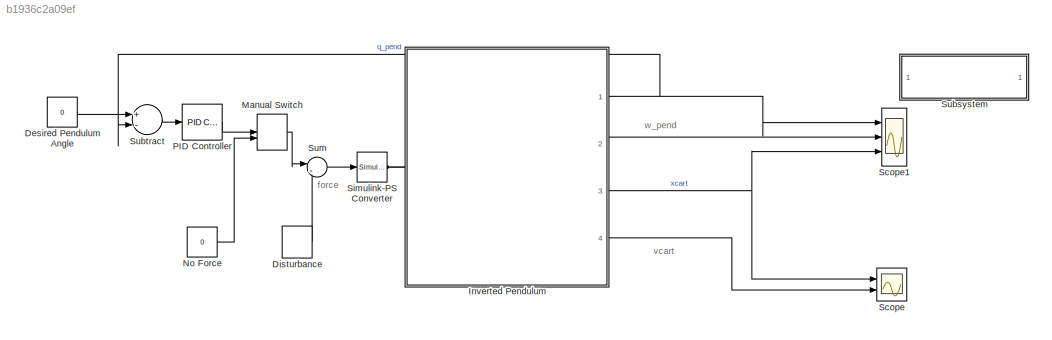
MODEL slx_b1936c2a09ef
KIND model
CONFIG AbsTol = auto
CONFIG EnableMultiTasking = on
CONFIG FixedStep = auto
CONFIG MaxStep = auto
CONFIG MinStep = auto
CONFIG RelTol = 1e-3
CONFIG SampleTimeConstraint = Unconstrained
CONFIG Solver = VariableStepAuto
CONFIG SolverName = VariableStepAuto
CONFIG StartTime = 0.0
CONFIG StopTime = 10.0
BLOCK [Constant] Desired Pendulum Angle 
  Value = 0
BLOCK [DiscretePulseGenerator] Disturbance 
  Amplitude = 1000
  Period = 10
  PhaseDelay = 1
  Ports = [0, 1]
  PulseType = Time based
  PulseWidth = 0.01
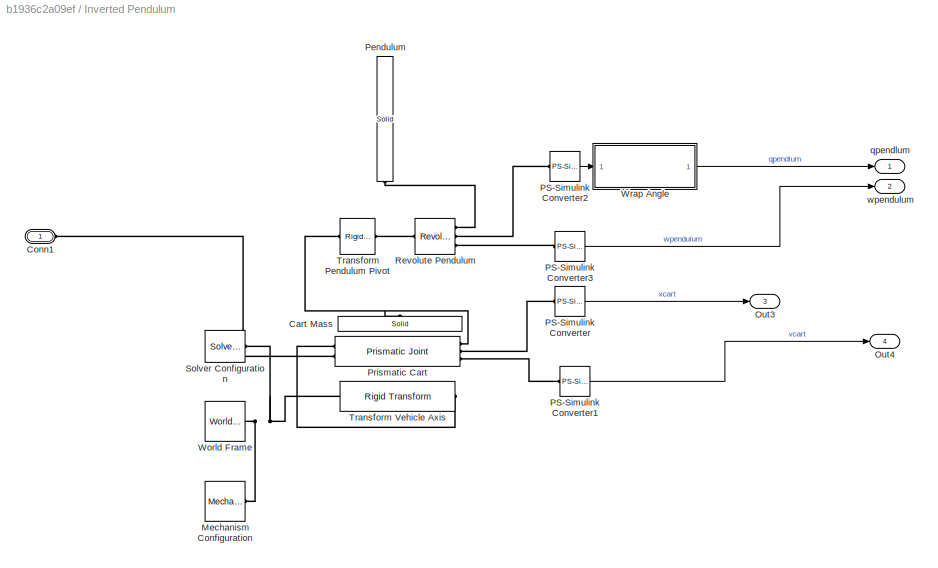
BLOCK [SubSystem] Inverted Pendulum
  Ports = [0, 4, 0, 0, 0, 1]
  RequestExecContextInheritance = off
BLOCK [Reference] Inverted Pendulum/Cart Mass  REF=sm_lib/Body Elements/Solid
  Ports = [0, 0, 0, 0, 0, 0, 1]
  SourceBlock = sm_lib/Body Elements/Solid
  SourceProductBaseCode = MS
  SourceProductName = Simscape Multibody
  SourceType = Solid
BLOCK [PMIOPort] Inverted Pendulum/Conn1
  Side = Left
BLOCK [Reference] Inverted Pendulum/Mechanism Configuration  REF=sm_lib/Utilities/Mechanism
Configuration
  Ports = [0, 0, 0, 0, 0, 0, 1]
  SourceBlock = sm_lib/Utilities/Mechanism\nConfiguration
  SourceProductBaseCode = MS
  SourceProductName = Simscape Multibody
  SourceType = Mechanism\nConfiguration
BLOCK [Outport] Inverted Pendulum/Out3
  IconDisplay = Port number
  Port = 3
BLOCK [Outport] Inverted Pendulum/Out4
  IconDisplay = Port number
  Port = 4
BLOCK [Reference] Inverted Pendulum/PS-Simulink Converter  REF=nesl_utility/PS-Simulink
Converter
  Ports = [0, 1, 0, 0, 0, 1]
  SourceBlock = nesl_utility/PS-Simulink\nConverter
  SourceProductBaseCode = SS
  SourceProductName = Simscape
  SourceType = PS-Simulink\nConverter
BLOCK [Reference] Inverted Pendulum/PS-Simulink Converter1  REF=nesl_utility/PS-Simulink
Converter
  Ports = [0, 1, 0, 0, 0, 1]
  SourceBlock = nesl_utility/PS-Simulink\nConverter
  SourceProductBaseCode = SS
  SourceProductName = Simscape
  SourceType = PS-Simulink\nConverter
BLOCK [Reference] Inverted Pendulum/PS-Simulink Converter2  REF=nesl_utility/PS-Simulink
Converter
  Ports = [0, 1, 0, 0, 0, 1]
  SourceBlock = nesl_utility/PS-Simulink\nConverter
  SourceProductBaseCode = SS
  SourceProductName = Simscape
  SourceType = PS-Simulink\nConverter
BLOCK [Reference] Inverted Pendulum/PS-Simulink Converter3  REF=nesl_utility/PS-Simulink
Converter
  Ports = [0, 1, 0, 0, 0, 1]
  SourceBlock = nesl_utility/PS-Simulink\nConverter
  SourceProductBaseCode = SS
  SourceProductName = Simscape
  SourceType = PS-Simulink\nConverter
BLOCK [Reference] Inverted Pendulum/Pendulum  REF=sm_lib/Body Elements/Solid
  Ports = [0, 0, 0, 0, 0, 1]
  SourceBlock = sm_lib/Body Elements/Solid
  SourceProductBaseCode = MS
  SourceProductName = Simscape Multibody
  SourceType = Solid
BLOCK [Reference] Inverted Pendulum/Prismatic Cart   REF=sm_lib/Joints/Prismatic
Joint
  Ports = [0, 0, 0, 0, 0, 2, 3]
  SourceBlock = sm_lib/Joints/Prismatic\nJoint
  SourceProductBaseCode = MS
  SourceProductName = Simscape Multibody
  SourceType = Prismatic\nJoint
BLOCK [Reference] Inverted Pendulum/Revolute Pendulum  REF=sm_lib/Joints/Revolute Joint
  Ports = [0, 0, 0, 0, 0, 1, 3]
  SourceBlock = sm_lib/Joints/Revolute Joint
  SourceProductBaseCode = MS
  SourceProductName = Simscape Multibody
  SourceType = Revolute Joint
BLOCK [Reference] Inverted Pendulum/Solver Configuration  REF=nesl_utility/Solver
Configuration
  Ports = [0, 0, 0, 0, 0, 0, 1]
  SourceBlock = nesl_utility/Solver\nConfiguration
  SourceProductBaseCode = SS
  SourceProductName = Simscape
  SourceType = Solver\nConfiguration
BLOCK [Reference] Inverted Pendulum/Transform Pendulum Pivot    REF=sm_lib/Frames and
Transforms/Rigid
Transform
  Ports = [0, 0, 0, 0, 0, 1, 1]
  SourceBlock = sm_lib/Frames and\nTransforms/Rigid\nTransform
  SourceProductBaseCode = MS
  SourceProductName = Simscape Multibody
  SourceType = Rigid\nTransform
BLOCK [Reference] Inverted Pendulum/Transform Vehicle Axis  REF=sm_lib/Frames and
Transforms/Rigid
Transform
  Ports = [0, 0, 0, 0, 0, 1, 1]
  SourceBlock = sm_lib/Frames and\nTransforms/Rigid\nTransform
  SourceProductBaseCode = MS
  SourceProductName = Simscape Multibody
  SourceType = Rigid\nTransform
BLOCK [Reference] Inverted Pendulum/World Frame  REF=sm_lib/Frames and
Transforms/World Frame
  Ports = [0, 0, 0, 0, 0, 0, 1]
  SourceBlock = sm_lib/Frames and\nTransforms/World Frame
  SourceProductBaseCode = MS
  SourceProductName = Simscape Multibody
  SourceType = World Frame
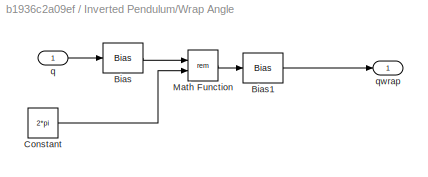
BLOCK [SubSystem] Inverted Pendulum/Wrap Angle
  Ports = [1, 1]
  RequestExecContextInheritance = off
BLOCK [Bias] Inverted Pendulum/Wrap Angle/Bias
  Bias = pi
  SaturateOnIntegerOverflow = off
BLOCK [Bias] Inverted Pendulum/Wrap Angle/Bias1
  Bias = -pi
  SaturateOnIntegerOverflow = off
BLOCK [Constant] Inverted Pendulum/Wrap Angle/Constant
  Value = 2*pi
BLOCK [Math] Inverted Pendulum/Wrap Angle/Math Function
  Operator = rem
  Ports = [2, 1]
BLOCK [Inport] Inverted Pendulum/Wrap Angle/q
  IconDisplay = Port number
BLOCK [Outport] Inverted Pendulum/Wrap Angle/qwrap 
  IconDisplay = Port number
BLOCK [Outport] Inverted Pendulum/qpendlum
  IconDisplay = Port number
BLOCK [Outport] Inverted Pendulum/wpendulum
  IconDisplay = Port number
  Port = 2
BLOCK [ManualSwitch] Manual Switch
BLOCK [Constant] No Force
  Value = 0
BLOCK [Reference] PID Controller  REF=simulink/Continuous/PID Controller
  Ports = [1, 1]
  SourceBlock = simulink/Continuous/PID Controller
  SourceProductBaseCode = SL
  SourceProductName = Simulink
  SourceType = PID 1dof
BLOCK [Scope] Scope
  Floating = off
  NumInputPorts = 2
  Ports = [2]
  ScopeSpecificationString = Simulink.scopes.TimeScopeBlockCfg('CurrentConfiguration', extmgr.ConfigurationSet(extmgr.Configuration('Core','General UI',true),extmgr.Configuration('Core','Source UI',true),extmgr.Configuration('Sources','WiredSimulink',true,'DataLoggingLimitDataPoints',true,'DataLoggingSaveFormat','Array','DataLoggingDecimation','1','DataLoggingDecimateData',true),extmgr.Configuration('Visuals','Time Domain',tr...<+1658ch>
BLOCK [Scope] Scope1
  Floating = off
  NumInputPorts = 3
  Ports = [3]
  ScopeSpecificationString = Simulink.scopes.TimeScopeBlockCfg('CurrentConfiguration', extmgr.ConfigurationSet(extmgr.Configuration('Core','General UI',true),extmgr.Configuration('Core','Source UI',true),extmgr.Configuration('Sources','WiredSimulink',true,'DataLoggingLimitDataPoints',true,'DataLoggingSaveFormat','Array','DataLoggingDecimation','1','DataLoggingDecimateData',true,'DataLoggingVariableName','ScopeData1'),extmgr.C...<+1736ch>
BLOCK [Reference] Simulink-PS Converter  REF=nesl_utility/Simulink-PS
Converter
  Ports = [1, 0, 0, 0, 0, 0, 1]
  SourceBlock = nesl_utility/Simulink-PS\nConverter
  SourceProductBaseCode = SS
  SourceProductName = Simscape
  SourceType = Simulink-PS\nConverter
BLOCK [SubSystem] Subsystem
  OpenFcn = open_system('sm_lib')
  Ports = []
  RequestExecContextInheritance = off
  ShowPortLabels = none
BLOCK [Sum] Subtract
  InputSameDT = off
  Inputs = +-
  OutDataTypeStr = Inherit: Inherit via internal rule
  Ports = [2, 1]
  SaturateOnIntegerOverflow = off
BLOCK [Sum] Sum
  IconShape = round
  InputSameDT = off
  Inputs = |++
  OutDataTypeStr = Inherit: Inherit via internal rule
  Ports = [2, 1]
  SaturateOnIntegerOverflow = off
ANNOTATION (root): force
ANNOTATION (root): vcart
ANNOTATION (root): w_pend
LINE Desired Pendulum Angle :1 -> Subtract:1
LINE Disturbance :1 -> Sum:2
LINE Inverted Pendulum/PS-Simulink Converter1:1 -> Inverted Pendulum/Out4:1
LINE Inverted Pendulum/PS-Simulink Converter2:1 -> Inverted Pendulum/Wrap Angle:1
LINE Inverted Pendulum/PS-Simulink Converter3:1 -> Inverted Pendulum/wpendulum:1
LINE Inverted Pendulum/PS-Simulink Converter:1 -> Inverted Pendulum/Out3:1
LINE Inverted Pendulum/Wrap Angle/Bias1:1 -> Inverted Pendulum/Wrap Angle/qwrap :1
LINE Inverted Pendulum/Wrap Angle/Bias:1 -> Inverted Pendulum/Wrap Angle/Math Function:1
LINE Inverted Pendulum/Wrap Angle/Constant:1 -> Inverted Pendulum/Wrap Angle/Math Function:2
LINE Inverted Pendulum/Wrap Angle/Math Function:1 -> Inverted Pendulum/Wrap Angle/Bias1:1
LINE Inverted Pendulum/Wrap Angle/q:1 -> Inverted Pendulum/Wrap Angle/Bias:1
LINE Inverted Pendulum/Wrap Angle:1 -> Inverted Pendulum/qpendlum:1
NET Inverted Pendulum:1 -> Scope1:1, Subtract:2
LINE Inverted Pendulum:2 -> Scope1:2
NET Inverted Pendulum:3 -> Scope1:3, Scope:1
LINE Inverted Pendulum:4 -> Scope:2
LINE Manual Switch:1 -> Sum:1
LINE No Force:1 -> Manual Switch:2
LINE PID Controller:1 -> Manual Switch:1
LINE Subtract:1 -> PID Controller:1
LINE Sum:1 -> Simulink-PS Converter:1
PNET net1: Inverted Pendulum/Cart Mass:RConn1 -- Inverted Pendulum/Prismatic Cart :RConn1 -- Inverted Pendulum/Transform Pendulum Pivot  :LConn1
PLINE Inverted Pendulum/Conn1:RConn1 -- Inverted Pendulum/Prismatic Cart :LConn2
PNET net2: Inverted Pendulum/Mechanism Configuration:RConn1 -- Inverted Pendulum/Solver Configuration:RConn1 -- Inverted Pendulum/Transform Vehicle Axis:LConn1 -- Inverted Pendulum/World Frame:RConn1
PLINE Inverted Pendulum/PS-Simulink Converter1:LConn1 -- Inverted Pendulum/Prismatic Cart :RConn3
PLINE Inverted Pendulum/PS-Simulink Converter2:LConn1 -- Inverted Pendulum/Revolute Pendulum:RConn2
PLINE Inverted Pendulum/PS-Simulink Converter3:LConn1 -- Inverted Pendulum/Revolute Pendulum:RConn3
PLINE Inverted Pendulum/PS-Simulink Converter:LConn1 -- Inverted Pendulum/Prismatic Cart :RConn2
PLINE Inverted Pendulum/Pendulum:LConn1 -- Inverted Pendulum/Revolute Pendulum:RConn1
PLINE Inverted Pendulum/Prismatic Cart :LConn1 -- Inverted Pendulum/Transform Vehicle Axis:RConn1
PLINE Inverted Pendulum/Revolute Pendulum:LConn1 -- Inverted Pendulum/Transform Pendulum Pivot  :RConn1
PLINE Inverted Pendulum:LConn1 -- Simulink-PS Converter:RConn1
note: NET lines group one-source signal fan-out (src -> all destinations, sorted); 1:1 wires keep LINE; PNET lines group multi-terminal physical nets as a canonical sorted terminal list (undirected conserving connections); 2-terminal nets keep the pairwise PLINE form
